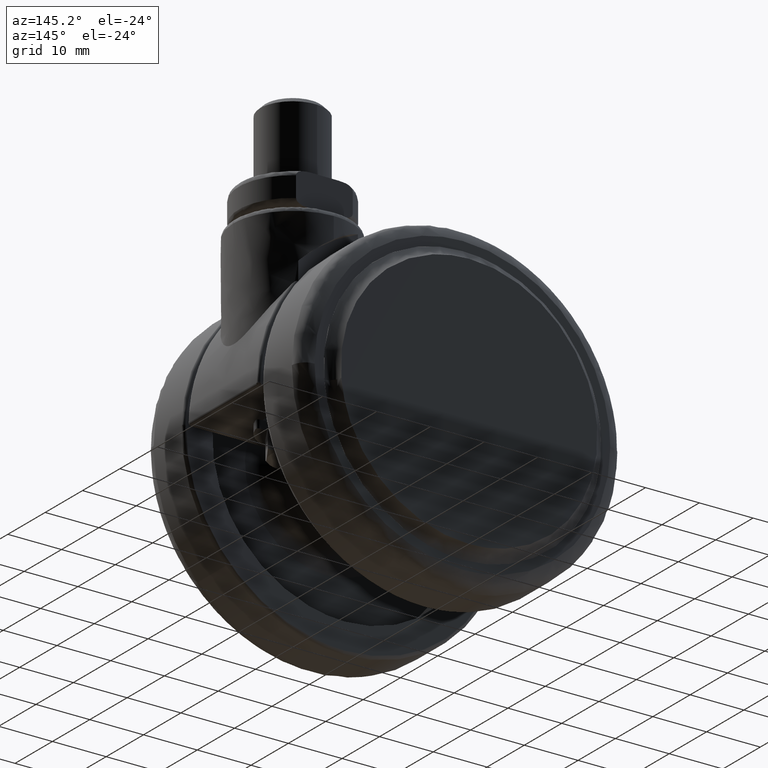
[diagram: clean part render]
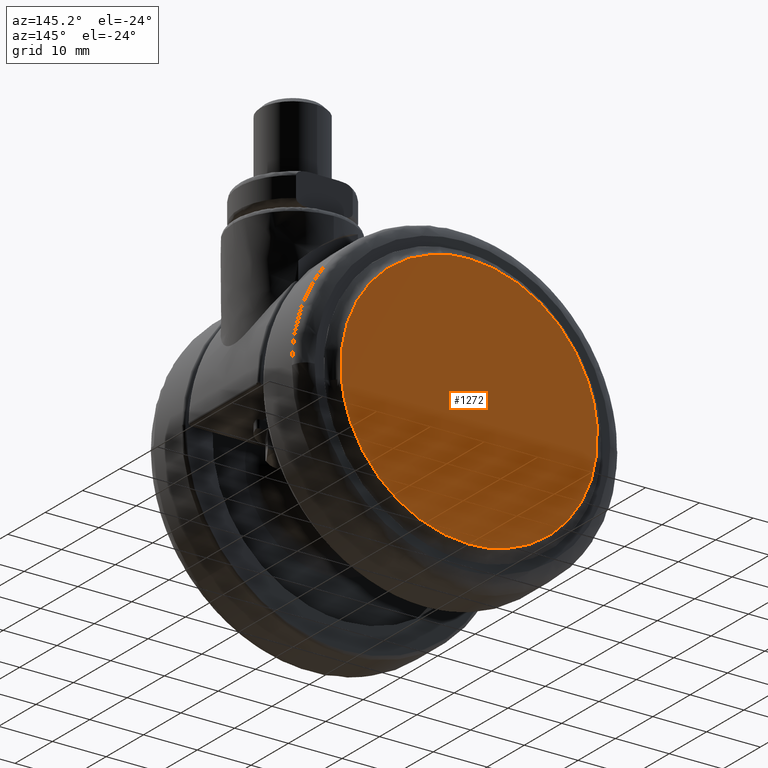
[diagram: same view with one face highlighted and labeled with its STEP entity id]
A machine part, auxiliary view. The second image highlights one B-rep face of the part: STEP entity #1272.
In plain terms, the highlighted face is a freeform B-spline surface patch.
Its self-contained STEP definition (entity closure, byte-faithful):
#1201=CARTESIAN_POINT('',(26.253983298255239,22.800000000000001,-26.260700038385689));
#1202=CARTESIAN_POINT('',(26.253983298255239,22.800000000000001,26.260701319169161));
#1203=CARTESIAN_POINT('',(-26.253983725177669,22.800000000000001,-26.260700038385689));
#1204=CARTESIAN_POINT('',(-26.253983725177669,22.800000000000001,26.260701319169161));
#1205=B_SPLINE_SURFACE_WITH_KNOTS('',1,1,((#1201,#1203),(#1202,#1204)),.UNSPECIFIED.,.F.,.F.,.U.,(2,2),(2,2),(0.0,52.521401357554851),(0.0,52.507967023432911),.UNSPECIFIED.);
#1206=CARTESIAN_POINT('',(23.783222111210389,22.799999999489390,-2.097494252924088));
#1207=VERTEX_POINT('',#1206);
#1208=CARTESIAN_POINT('',(2.792102E-015,22.800000000000001,23.875534258511259));
#1209=VERTEX_POINT('',#1208);
#1210=CARTESIAN_POINT('',(23.783222111210392,22.799999999489387,-2.097494252924089));
#1211=CARTESIAN_POINT('',(23.875534258569957,22.799999999499676,-1.050778486631238));
#1212=CARTESIAN_POINT('',(23.875534258568639,22.799999999510920,-5.057056E-012));
#1213=CARTESIAN_POINT('',(23.875534258538682,22.799999999766211,23.875534258508829));
#1214=CARTESIAN_POINT('',(2.792102E-015,22.800000000000001,23.875534258511259));
#1222=(BOUNDED_CURVE()B_SPLINE_CURVE(2,(#1210,#1211,#1212,#1213,#1214),.UNSPECIFIED.,.F.,.U.)B_SPLINE_CURVE_WITH_KNOTS((3,2,3),(0.734718454855897,0.750000000000000,1.0),.UNSPECIFIED.)CURVE()GEOMETRIC_REPRESENTATION_ITEM()RATIONAL_B_SPLINE_CURVE((0.966381850709618,0.982096556217202,1.0,0.707106781186547,1.0))REPRESENTATION_ITEM(''));
#1223=EDGE_CURVE('',#1207,#1209,#1222,.T.);
#1224=ORIENTED_EDGE('',*,*,#1223,.F.);
#1225=CARTESIAN_POINT('',(2.792102E-015,22.800000000000001,-23.875534258511252));
#1226=VERTEX_POINT('',#1225);
#1227=CARTESIAN_POINT('',(2.792102E-015,22.800000000000001,-23.875534258511252));
#1228=CARTESIAN_POINT('',(21.862569243453571,22.799999999744692,-23.875534258513881));
#1229=CARTESIAN_POINT('',(23.783222111210392,22.799999999489387,-2.097494252924089));
#1237=(BOUNDED_CURVE()B_SPLINE_CURVE(2,(#1227,#1228,#1229),.UNSPECIFIED.,.F.,.U.)B_SPLINE_CURVE_WITH_KNOTS((3,3),(0.500000000000000,0.734718454855897),.UNSPECIFIED.)CURVE()GEOMETRIC_REPRESENTATION_ITEM()RATIONAL_B_SPLINE_CURVE((1.0,0.725010224969346,0.966381850709618))REPRESENTATION_ITEM(''));
#1238=EDGE_CURVE('',#1226,#1207,#1237,.T.);
#1239=ORIENTED_EDGE('',*,*,#1238,.F.);
#1240=CARTESIAN_POINT('',(-23.783222111210382,22.799999999489401,2.097494252924087));
#1241=VERTEX_POINT('',#1240);
#1242=CARTESIAN_POINT('',(-23.783222111210382,22.799999999489398,2.097494252924088));
#1243=CARTESIAN_POINT('',(-23.875534258569946,22.799999999499686,1.050778486631239));
#1244=CARTESIAN_POINT('',(-23.875534258568631,22.799999999510920,5.060183E-012));
#1245=CARTESIAN_POINT('',(-23.875534258538682,22.799999999766225,-23.875534258508829));
#1246=CARTESIAN_POINT('',(2.792102E-015,22.800000000000001,-23.875534258511252));
#1254=(BOUNDED_CURVE()B_SPLINE_CURVE(2,(#1242,#1243,#1244,#1245,#1246),.UNSPECIFIED.,.F.,.U.)B_SPLINE_CURVE_WITH_KNOTS((3,2,3),(0.234718454855897,0.250000000000000,0.500000000000000),.UNSPECIFIED.)CURVE()GEOMETRIC_REPRESENTATION_ITEM()RATIONAL_B_SPLINE_CURVE((0.966381850709618,0.982096556217202,1.0,0.707106781186547,1.0))REPRESENTATION_ITEM(''));
#1255=EDGE_CURVE('',#1241,#1226,#1254,.T.);
#1256=ORIENTED_EDGE('',*,*,#1255,.F.);
#1257=CARTESIAN_POINT('',(2.792102E-015,22.800000000000001,23.875534258511259));
#1258=CARTESIAN_POINT('',(-21.862569243453560,22.799999999744696,23.875534258513884));
#1259=CARTESIAN_POINT('',(-23.783222111210382,22.799999999489398,2.097494252924088));
#1267=(BOUNDED_CURVE()B_SPLINE_CURVE(2,(#1257,#1258,#1259),.UNSPECIFIED.,.F.,.U.)B_SPLINE_CURVE_WITH_KNOTS((3,3),(0.0,0.234718454855897),.UNSPECIFIED.)CURVE()GEOMETRIC_REPRESENTATION_ITEM()RATIONAL_B_SPLINE_CURVE((1.0,0.725010224969346,0.966381850709618))REPRESENTATION_ITEM(''));
#1268=EDGE_CURVE('',#1209,#1241,#1267,.T.);
#1269=ORIENTED_EDGE('',*,*,#1268,.F.);
#1270=EDGE_LOOP('',(#1224,#1239,#1256,#1269));
#1271=FACE_OUTER_BOUND('',#1270,.T.);
#1272=ADVANCED_FACE('',(#1271),#1205,.F.);